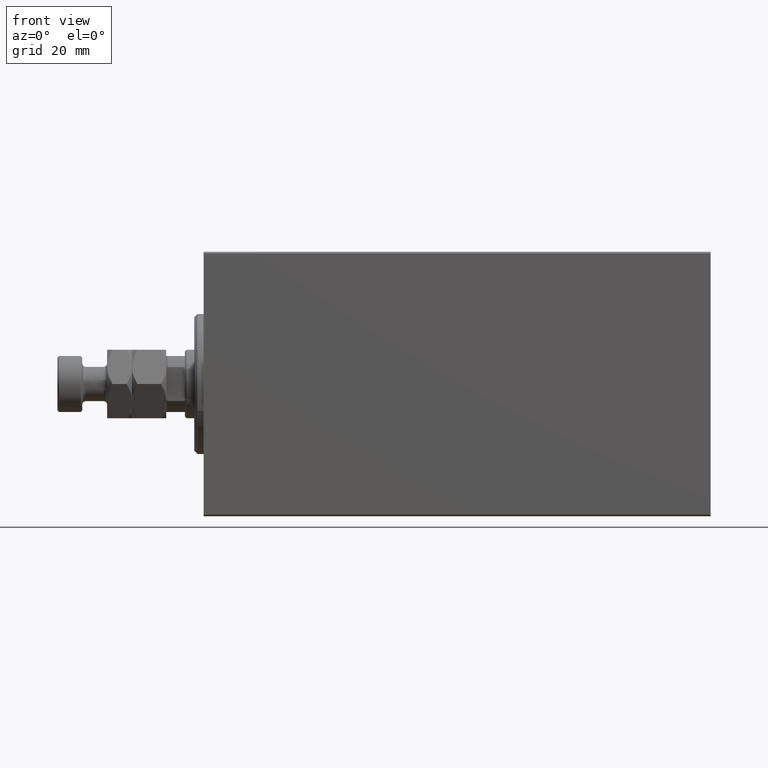
[diagram: clean part render]
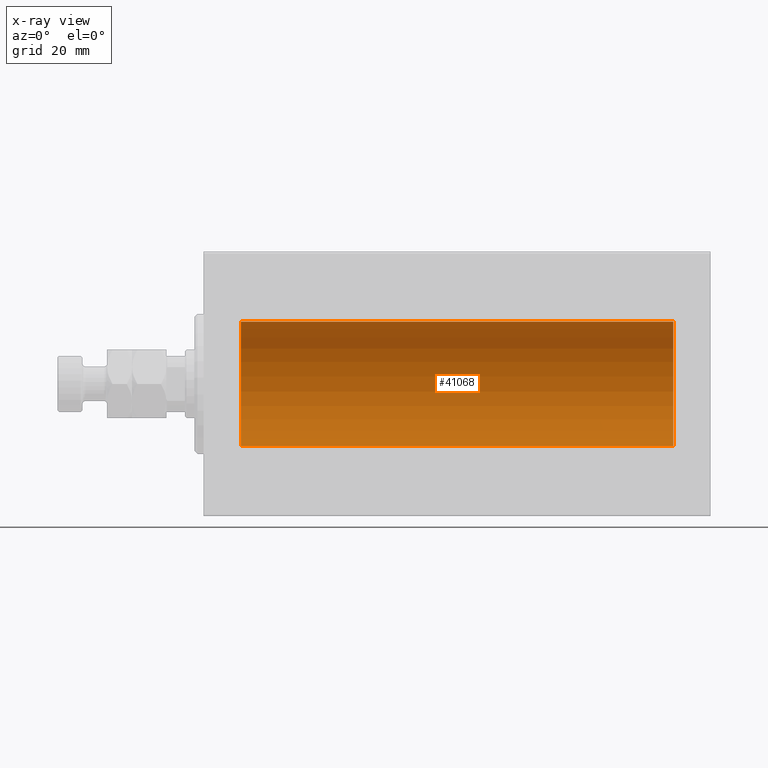
[diagram: x-ray — body ghosted, one internal face saturated and labeled with its STEP entity id]
A machine part, front view, then the same camera in x-ray: the body is ghosted and one INTERNAL B-rep face — a face not visible from any outside direction — is saturated and labeled: STEP entity #41068.
In plain terms, the highlighted cylindrical surface (partial cylindrical patch) has radius 20 mm, axis along (-1, -0, -0).
Its self-contained STEP definition (entity closure, byte-faithful):
#602 = DIRECTION ( 'NONE',  ( -1.000000000000000000, -0.000000000000000000, -0.000000000000000000 ) ) ;
#757 = FACE_OUTER_BOUND ( 'NONE', #28081, .T. ) ;
#1384 = AXIS2_PLACEMENT_3D ( 'NONE', #8690, #33899, #29804 ) ;
#5549 = VERTEX_POINT ( 'NONE', #15709 ) ;
#7718 = VECTOR ( 'NONE', #602, 1000.000000000000000 ) ;
#8690 = CARTESIAN_POINT ( 'NONE',  ( 151.0000000000000000, 0.000000000000000000, 0.000000000000000000 ) ) ;
#8909 = EDGE_CURVE ( 'NONE', #32861, #5549, #31406, .T. ) ;
#9985 = EDGE_CURVE ( 'NONE', #22651, #14262, #33621, .T. ) ;
#11090 = DIRECTION ( 'NONE',  ( -1.000000000000000000, -0.000000000000000000, -0.000000000000000000 ) ) ;
#14262 = VERTEX_POINT ( 'NONE', #15964 ) ;
#15709 = CARTESIAN_POINT ( 'NONE',  ( 12.00000000000001066, 2.449293598294706513E-15, -20.00000000000000000 ) ) ;
#15785 = VECTOR ( 'NONE', #33279, 1000.000000000000000 ) ;
#15964 = CARTESIAN_POINT ( 'NONE',  ( 151.0000000000000000, 2.449293598294706513E-15, -20.00000000000000000 ) ) ;
#16297 = EDGE_CURVE ( 'NONE', #14262, #5549, #40609, .T. ) ;
#16789 = EDGE_CURVE ( 'NONE', #22651, #32861, #19354, .T. ) ;
#17186 = DIRECTION ( 'NONE',  ( 0.000000000000000000, 0.000000000000000000, 1.000000000000000000 ) ) ;
#19354 = LINE ( 'NONE', #38918, #7718 ) ;
#19884 = ORIENTED_EDGE ( 'NONE', *, *, #16789, .T. ) ;
#20181 = DIRECTION ( 'NONE',  ( -1.000000000000000000, 0.000000000000000000, 0.000000000000000000 ) ) ;
#21139 = AXIS2_PLACEMENT_3D ( 'NONE', #37827, #20181, #17186 ) ;
#22651 = VERTEX_POINT ( 'NONE', #35902 ) ;
#24339 = CARTESIAN_POINT ( 'NONE',  ( 12.00000000000001066, 0.000000000000000000, 20.00000000000000000 ) ) ;
#28081 = EDGE_LOOP ( 'NONE', ( #39082, #40923, #19884, #34805 ) ) ;
#28549 = CYLINDRICAL_SURFACE ( 'NONE', #39734, 20.00000000000000000 ) ;
#29804 = DIRECTION ( 'NONE',  ( 0.000000000000000000, 0.000000000000000000, 1.000000000000000000 ) ) ;
#31406 = CIRCLE ( 'NONE', #21139, 20.00000000000000000 ) ;
#32648 = DIRECTION ( 'NONE',  ( 0.000000000000000000, 0.000000000000000000, 1.000000000000000000 ) ) ;
#32826 = CARTESIAN_POINT ( 'NONE',  ( 151.0000000000000000, 2.449293598294706513E-15, -20.00000000000000000 ) ) ;
#32861 = VERTEX_POINT ( 'NONE', #24339 ) ;
#33279 = DIRECTION ( 'NONE',  ( -1.000000000000000000, -0.000000000000000000, -0.000000000000000000 ) ) ;
#33621 = CIRCLE ( 'NONE', #1384, 20.00000000000000000 ) ;
#33899 = DIRECTION ( 'NONE',  ( -1.000000000000000000, 0.000000000000000000, 0.000000000000000000 ) ) ;
#34805 = ORIENTED_EDGE ( 'NONE', *, *, #8909, .T. ) ;
#35902 = CARTESIAN_POINT ( 'NONE',  ( 151.0000000000000000, 0.000000000000000000, 20.00000000000000000 ) ) ;
#37827 = CARTESIAN_POINT ( 'NONE',  ( 12.00000000000001066, 0.000000000000000000, 0.000000000000000000 ) ) ;
#38918 = CARTESIAN_POINT ( 'NONE',  ( 151.0000000000000000, 0.000000000000000000, 20.00000000000000000 ) ) ;
#39082 = ORIENTED_EDGE ( 'NONE', *, *, #16297, .F. ) ;
#39734 = AXIS2_PLACEMENT_3D ( 'NONE', #39752, #11090, #32648 ) ;
#39752 = CARTESIAN_POINT ( 'NONE',  ( 151.0000000000000000, 0.000000000000000000, 0.000000000000000000 ) ) ;
#40609 = LINE ( 'NONE', #32826, #15785 ) ;
#40923 = ORIENTED_EDGE ( 'NONE', *, *, #9985, .F. ) ;
#41068 = ADVANCED_FACE ( 'NONE', ( #757 ), #28549, .F. ) ;